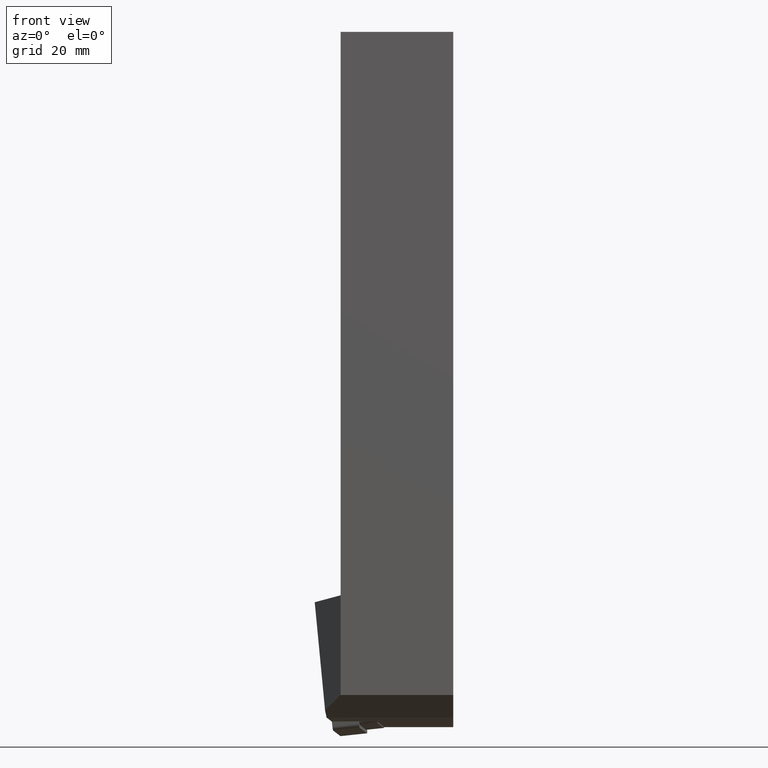
[diagram: clean part render]
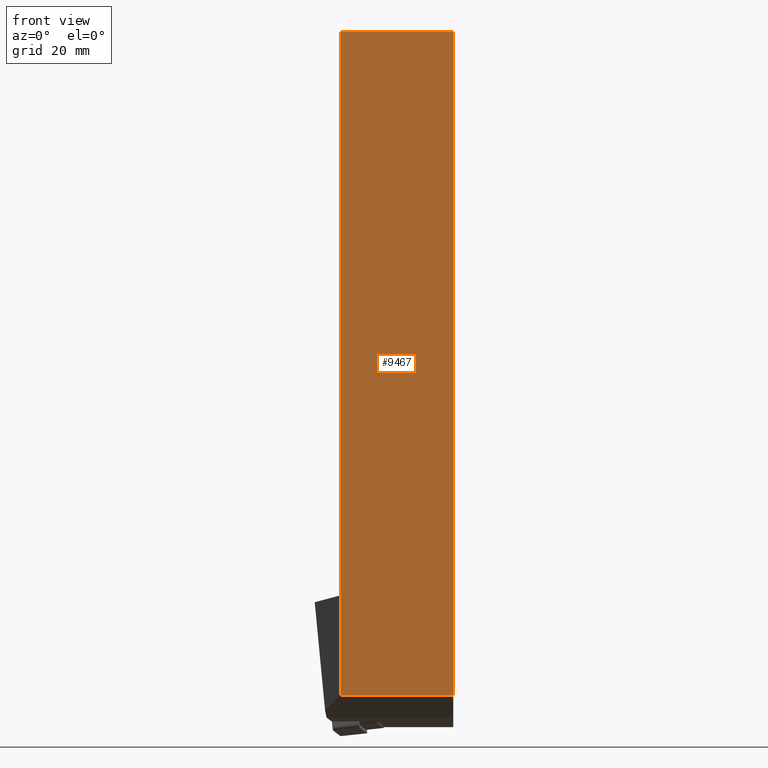
[diagram: same view with one face highlighted and labeled with its STEP entity id]
A machine part, front view. The second image highlights one B-rep face of the part: STEP entity #9467.
In plain terms, the highlighted planar face has unit normal (0, 1, 0).
Its self-contained STEP definition (entity closure, byte-faithful):
#9348=CARTESIAN_POINT('',(0.0,0.0,-100.0));
#9349=VERTEX_POINT('',#9348);
#9357=CARTESIAN_POINT('',(0.0,0.0,-117.69459814909274));
#9358=VERTEX_POINT('',#9357);
#9365=CARTESIAN_POINT('',(2.220446E-015,-2.775558E-016,-117.69459814909274));
#9366=DIRECTION('',(0.0,0.0,1.0));
#9367=VECTOR('',#9366,17.694598149092741);
#9368=LINE('',#9365,#9367);
#9369=EDGE_CURVE('',#9358,#9349,#9368,.T.);
#9419=CARTESIAN_POINT('',(19.999999999999996,-9.860761E-031,-117.69459814909274));
#9420=VERTEX_POINT('',#9419);
#9427=CARTESIAN_POINT('',(19.999999999999996,-4.930381E-031,-117.69459814909274));
#9428=DIRECTION('',(-1.0,0.0,0.0));
#9429=VECTOR('',#9428,19.999999999999993);
#9430=LINE('',#9427,#9429);
#9431=EDGE_CURVE('',#9420,#9358,#9430,.T.);
#9436=CARTESIAN_POINT('',(19.999999999999996,-9.860761E-031,0.0));
#9437=DIRECTION('',(0.0,1.0,0.0));
#9438=DIRECTION('',(0.0,0.0,1.0));
#9439=AXIS2_PLACEMENT_3D('',#9436,#9437,#9438);
#9440=PLANE('',#9439);
#9441=ORIENTED_EDGE('',*,*,#9369,.F.);
#9442=ORIENTED_EDGE('',*,*,#9431,.F.);
#9443=CARTESIAN_POINT('',(19.999999999999996,-9.860761E-031,0.0));
#9444=VERTEX_POINT('',#9443);
#9445=CARTESIAN_POINT('',(19.999999999999996,-9.860761E-031,0.0));
#9446=DIRECTION('',(0.0,0.0,-1.0));
#9447=VECTOR('',#9446,117.69459814909274);
#9448=LINE('',#9445,#9447);
#9449=EDGE_CURVE('',#9444,#9420,#9448,.T.);
#9450=ORIENTED_EDGE('',*,*,#9449,.F.);
#9451=CARTESIAN_POINT('',(0.0,0.0,0.0));
#9452=VERTEX_POINT('',#9451);
#9453=CARTESIAN_POINT('',(0.0,0.0,0.0));
#9454=DIRECTION('',(1.0,0.0,0.0));
#9455=VECTOR('',#9454,19.999999999999996);
#9456=LINE('',#9453,#9455);
#9457=EDGE_CURVE('',#9452,#9444,#9456,.T.);
#9458=ORIENTED_EDGE('',*,*,#9457,.F.);
#9459=CARTESIAN_POINT('',(0.0,0.0,0.0));
#9460=DIRECTION('',(0.0,0.0,-1.0));
#9461=VECTOR('',#9460,100.0);
#9462=LINE('',#9459,#9461);
#9463=EDGE_CURVE('',#9452,#9349,#9462,.T.);
#9464=ORIENTED_EDGE('',*,*,#9463,.T.);
#9465=EDGE_LOOP('',(#9441,#9442,#9450,#9458,#9464));
#9466=FACE_OUTER_BOUND('',#9465,.T.);
#9467=ADVANCED_FACE('',(#9466),#9440,.F.);